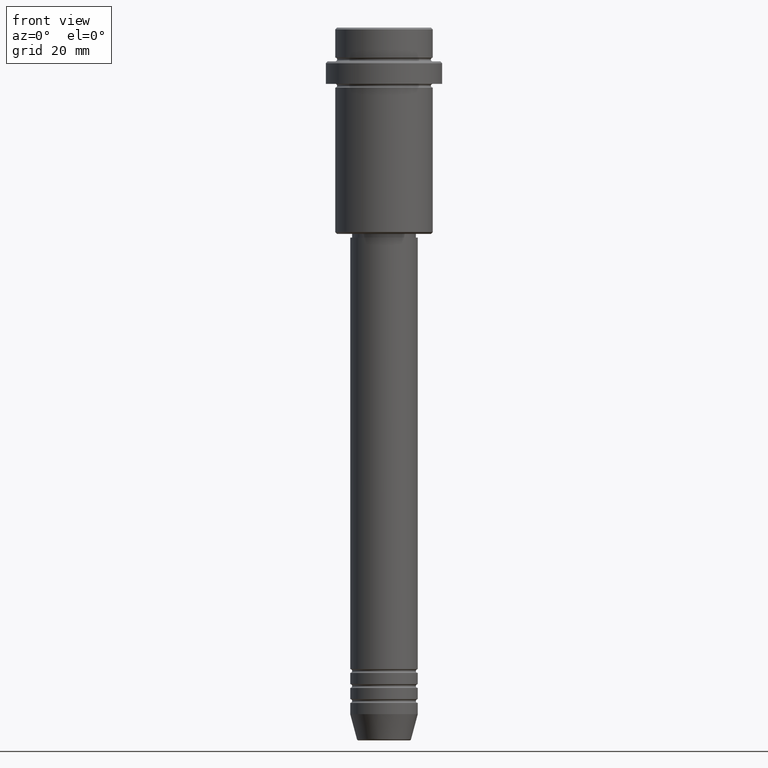
[diagram: clean part render]
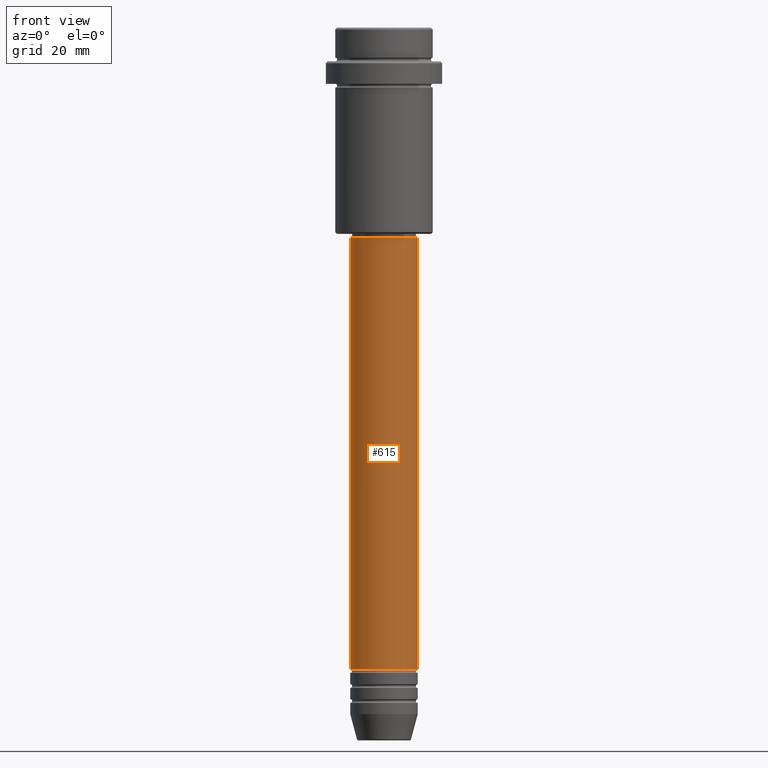
[diagram: same view with one face highlighted and labeled with its STEP entity id]
A machine part, front view. The second image highlights one B-rep face of the part: STEP entity #615.
In plain terms, the highlighted cylindrical surface (edge-blend (fillet) strip) has radius 9 mm, axis along (-0, -0, 1).
Its self-contained STEP definition (entity closure, byte-faithful):
#6 = EDGE_LOOP ( 'NONE', ( #744, #779, #1053, #855 ) ) ;
#20 = CIRCLE ( 'NONE', #375, 9.000000000000001776 ) ;
#23 = CARTESIAN_POINT ( 'NONE',  ( 9.000000000000000000, 0.000000000000000000, -170.9999999999998863 ) ) ;
#51 = DIRECTION ( 'NONE',  ( 1.000000000000000000, 0.000000000000000000, 0.000000000000000000 ) ) ;
#52 = EDGE_CURVE ( 'NONE', #506, #1351, #417, .T. ) ;
#166 = DIRECTION ( 'NONE',  ( -0.000000000000000000, -0.000000000000000000, 1.000000000000000000 ) ) ;
#203 = CARTESIAN_POINT ( 'NONE',  ( 0.000000000000000000, 0.000000000000000000, -170.9999999999998863 ) ) ;
#242 = EDGE_CURVE ( 'NONE', #506, #1072, #637, .T. ) ;
#260 = VECTOR ( 'NONE', #859, 1000.000000000000000 ) ;
#285 = AXIS2_PLACEMENT_3D ( 'NONE', #203, #297, #854 ) ;
#297 = DIRECTION ( 'NONE',  ( -0.000000000000000000, -0.000000000000000000, 1.000000000000000000 ) ) ;
#375 = AXIS2_PLACEMENT_3D ( 'NONE', #507, #1047, #415 ) ;
#415 = DIRECTION ( 'NONE',  ( 1.000000000000000000, 0.000000000000000000, 0.000000000000000000 ) ) ;
#417 = LINE ( 'NONE', #635, #260 ) ;
#506 = VERTEX_POINT ( 'NONE', #1092 ) ;
#507 = CARTESIAN_POINT ( 'NONE',  ( 0.000000000000000000, 0.000000000000000000, -55.99999999999999289 ) ) ;
#528 = CARTESIAN_POINT ( 'NONE',  ( 9.000000000000001776, 0.000000000000000000, -55.99999999999999289 ) ) ;
#583 = FACE_OUTER_BOUND ( 'NONE', #6, .T. ) ;
#615 = ADVANCED_FACE ( 'NONE', ( #583 ), #914, .T. ) ;
#635 = CARTESIAN_POINT ( 'NONE',  ( -9.000000000000001776, 1.102182119232617911E-15, 0.000000000000000000 ) ) ;
#636 = VECTOR ( 'NONE', #166, 1000.000000000000000 ) ;
#637 = CIRCLE ( 'NONE', #285, 9.000000000000000000 ) ;
#744 = ORIENTED_EDGE ( 'NONE', *, *, #52, .F. ) ;
#746 = VERTEX_POINT ( 'NONE', #528 ) ;
#779 = ORIENTED_EDGE ( 'NONE', *, *, #242, .T. ) ;
#828 = CARTESIAN_POINT ( 'NONE',  ( 9.000000000000001776, 0.000000000000000000, 0.000000000000000000 ) ) ;
#854 = DIRECTION ( 'NONE',  ( 1.000000000000000000, 0.000000000000000000, 0.000000000000000000 ) ) ;
#855 = ORIENTED_EDGE ( 'NONE', *, *, #1114, .F. ) ;
#859 = DIRECTION ( 'NONE',  ( -0.000000000000000000, -0.000000000000000000, 1.000000000000000000 ) ) ;
#909 = CARTESIAN_POINT ( 'NONE',  ( 0.000000000000000000, 0.000000000000000000, 0.000000000000000000 ) ) ;
#914 = CYLINDRICAL_SURFACE ( 'NONE', #1150, 9.000000000000001776 ) ;
#950 = LINE ( 'NONE', #828, #636 ) ;
#1047 = DIRECTION ( 'NONE',  ( -0.000000000000000000, -0.000000000000000000, 1.000000000000000000 ) ) ;
#1053 = ORIENTED_EDGE ( 'NONE', *, *, #1162, .T. ) ;
#1072 = VERTEX_POINT ( 'NONE', #23 ) ;
#1092 = CARTESIAN_POINT ( 'NONE',  ( -9.000000000000000000, 1.102182119232617714E-15, -170.9999999999998863 ) ) ;
#1109 = CARTESIAN_POINT ( 'NONE',  ( -9.000000000000001776, 1.102182119232617911E-15, -55.99999999999999289 ) ) ;
#1114 = EDGE_CURVE ( 'NONE', #1351, #746, #20, .T. ) ;
#1150 = AXIS2_PLACEMENT_3D ( 'NONE', #909, #1332, #51 ) ;
#1162 = EDGE_CURVE ( 'NONE', #1072, #746, #950, .T. ) ;
#1332 = DIRECTION ( 'NONE',  ( -0.000000000000000000, -0.000000000000000000, 1.000000000000000000 ) ) ;
#1351 = VERTEX_POINT ( 'NONE', #1109 ) ;